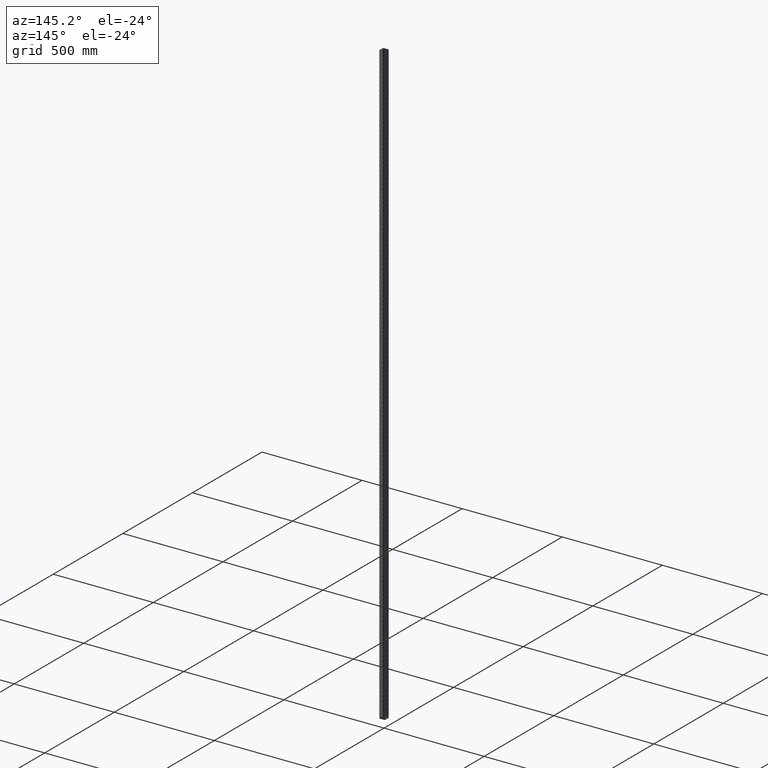
[diagram: clean part render]
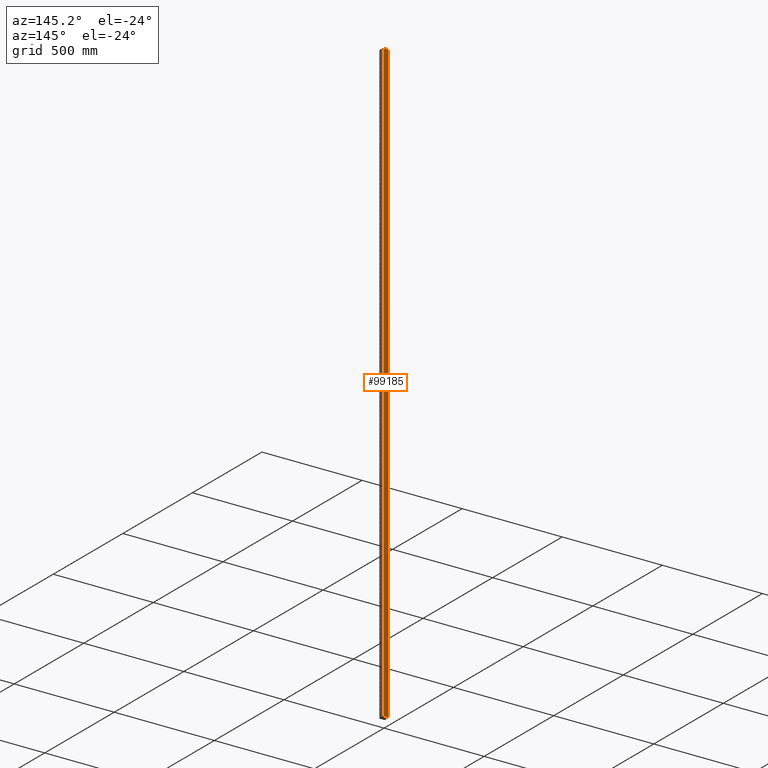
[diagram: same view with one face highlighted and labeled with its STEP entity id]
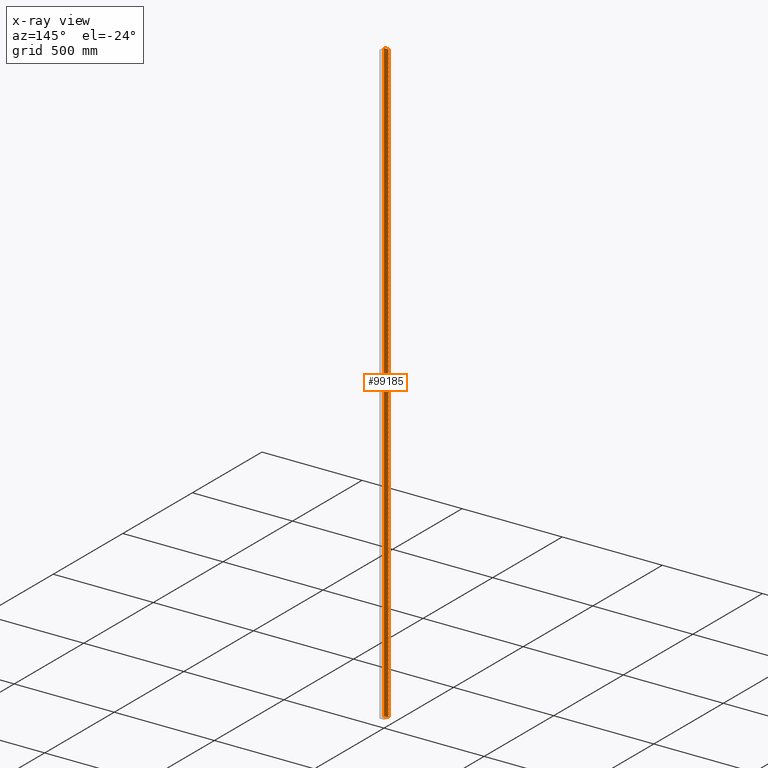
[diagram: x-ray of the same camera — body ghosted, the highlighted face saturated]
A machine part, auxiliary view. The second image highlights one B-rep face of the part: STEP entity #99185.
The next image is the same camera in x-ray: the body ghosted, the highlighted face saturated — about 0% of this face is hidden behind the body in this view.
In plain terms, the highlighted planar face has unit normal (-0, 1, 0).
Its self-contained STEP definition (entity closure, byte-faithful):
#4014 = CARTESIAN_POINT ( 'NONE',  ( -15.00000000000000000, 15.00000000000000000, -3000.000000000000000 ) ) ;
#4122 = ORIENTED_EDGE ( 'NONE', *, *, #124749, .T. ) ;
#10797 = DIRECTION ( 'NONE',  ( 0.000000000000000000, 0.000000000000000000, 1.000000000000000000 ) ) ;
#21777 = CARTESIAN_POINT ( 'NONE',  ( -11.25000000000000000, 15.00000000000000000, 0.000000000000000000 ) ) ;
#26064 = VECTOR ( 'NONE', #10797, 1000.000000000000000 ) ;
#32175 = VERTEX_POINT ( 'NONE', #88744 ) ;
#32323 = VECTOR ( 'NONE', #51407, 1000.000000000000000 ) ;
#33749 = VERTEX_POINT ( 'NONE', #85664 ) ;
#34599 = PLANE ( 'NONE',  #115470 ) ;
#44872 = ORIENTED_EDGE ( 'NONE', *, *, #99914, .T. ) ;
#45126 = DIRECTION ( 'NONE',  ( -1.000000000000000000, -5.782411586589358625E-17, -0.000000000000000000 ) ) ;
#51100 = CARTESIAN_POINT ( 'NONE',  ( -11.25000000000000000, 15.00000000000000000, -3000.000000000000000 ) ) ;
#51407 = DIRECTION ( 'NONE',  ( -0.000000000000000000, -0.000000000000000000, -1.000000000000000000 ) ) ;
#53679 = CARTESIAN_POINT ( 'NONE',  ( -15.00000000000000000, 15.00000000000000000, -3000.000000000000000 ) ) ;
#53925 = LINE ( 'NONE', #51100, #26064 ) ;
#54510 = DIRECTION ( 'NONE',  ( -1.000000000000000000, -5.782411586589357392E-17, 0.000000000000000000 ) ) ;
#57121 = LINE ( 'NONE', #101194, #32323 ) ;
#57447 = EDGE_CURVE ( 'NONE', #112334, #98094, #96835, .T. ) ;
#57987 = ORIENTED_EDGE ( 'NONE', *, *, #57447, .F. ) ;
#64008 = DIRECTION ( 'NONE',  ( -5.782411586589357392E-17, 1.000000000000000000, 0.000000000000000000 ) ) ;
#80483 = EDGE_LOOP ( 'NONE', ( #44872, #122567, #57987, #4122 ) ) ;
#83169 = EDGE_CURVE ( 'NONE', #33749, #98094, #53925, .T. ) ;
#85664 = CARTESIAN_POINT ( 'NONE',  ( -11.25000000000000000, 15.00000000000000000, -3000.000000000000000 ) ) ;
#87755 = DIRECTION ( 'NONE',  ( -1.000000000000000000, -5.782411586589358625E-17, -0.000000000000000000 ) ) ;
#88744 = CARTESIAN_POINT ( 'NONE',  ( 11.24999999999998934, 15.00000000000000178, -3000.000000000000000 ) ) ;
#96835 = LINE ( 'NONE', #97723, #124845 ) ;
#97723 = CARTESIAN_POINT ( 'NONE',  ( -15.00000000000000000, 15.00000000000000000, 0.000000000000000000 ) ) ;
#98094 = VERTEX_POINT ( 'NONE', #21777 ) ;
#99185 = ADVANCED_FACE ( 'NONE', ( #104158 ), #34599, .T. ) ;
#99914 = EDGE_CURVE ( 'NONE', #32175, #33749, #113519, .T. ) ;
#101194 = CARTESIAN_POINT ( 'NONE',  ( 11.24999999999999645, 15.00000000000000178, -3000.000000000000000 ) ) ;
#104158 = FACE_OUTER_BOUND ( 'NONE', #80483, .T. ) ;
#108778 = VECTOR ( 'NONE', #45126, 1000.000000000000000 ) ;
#112334 = VERTEX_POINT ( 'NONE', #117249 ) ;
#113519 = LINE ( 'NONE', #4014, #108778 ) ;
#115470 = AXIS2_PLACEMENT_3D ( 'NONE', #53679, #64008, #54510 ) ;
#117249 = CARTESIAN_POINT ( 'NONE',  ( 11.24999999999998934, 15.00000000000000178, 0.000000000000000000 ) ) ;
#122567 = ORIENTED_EDGE ( 'NONE', *, *, #83169, .T. ) ;
#124749 = EDGE_CURVE ( 'NONE', #112334, #32175, #57121, .T. ) ;
#124845 = VECTOR ( 'NONE', #87755, 1000.000000000000000 ) ;